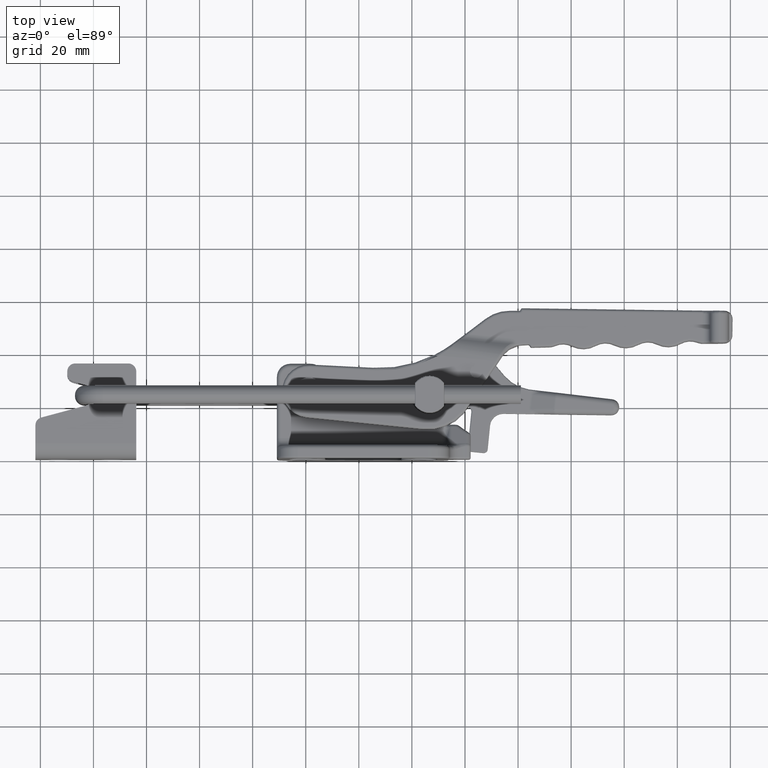
[diagram: clean part render]
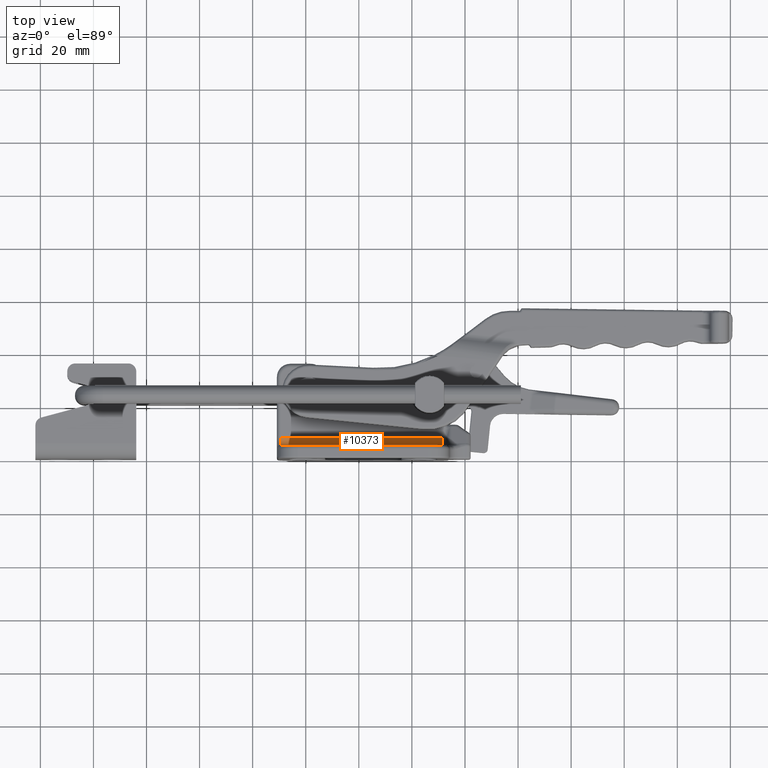
[diagram: same view with one face highlighted and labeled with its STEP entity id]
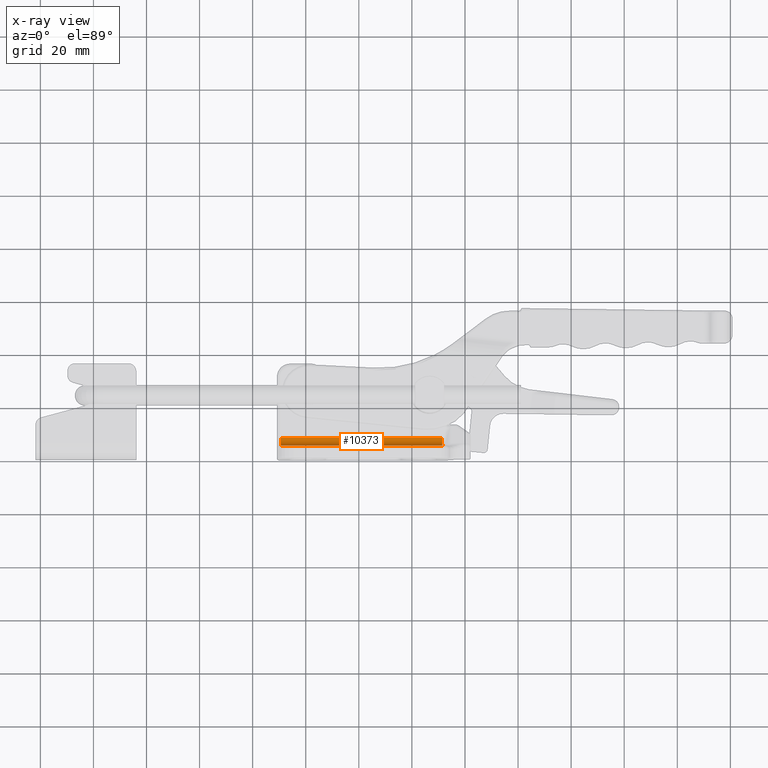
[diagram: x-ray of the same camera — body ghosted, the highlighted face saturated]
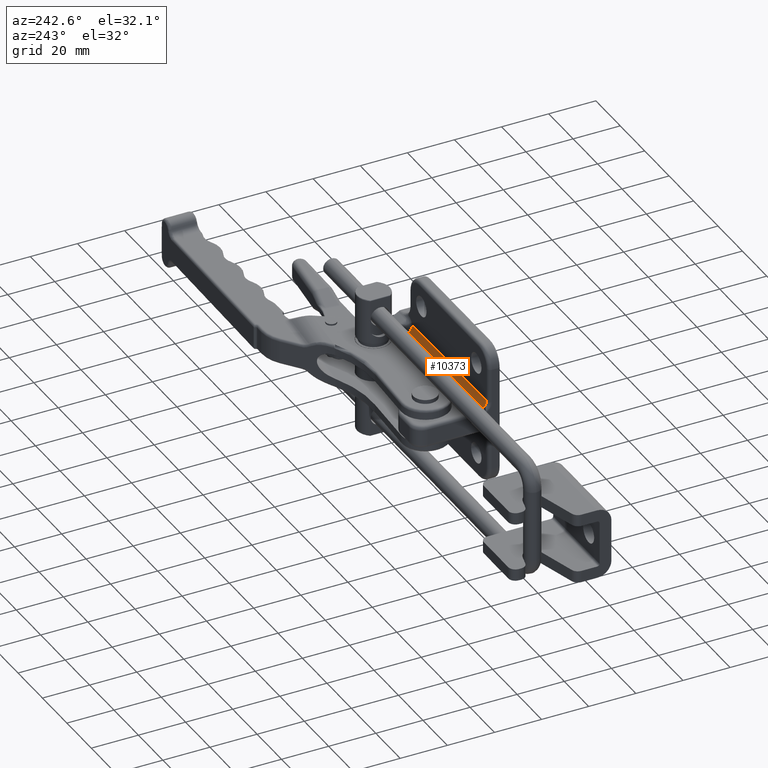
[diagram: same view with one face highlighted and labeled with its STEP entity id]
A machine part, top view. The second image highlights one B-rep face of the part: STEP entity #10373.
The next image is the same camera in x-ray: the body ghosted, the highlighted face saturated — about 0% of this face is hidden behind the body in this view.
A second angle (auxiliary view) of the same face is appended — the face is thin or edge-on in the first view.
In plain terms, the highlighted cylindrical surface (edge-blend (fillet) strip) has radius 3 mm, axis along (-1, 0, 0).
Its self-contained STEP definition (entity closure, byte-faithful):
#232=B_SPLINE_CURVE_WITH_KNOTS('',3,(#17398,#17399,#17400,#17401,#17402,
#17403,#17404,#17405,#17406,#17407),.UNSPECIFIED.,.F.,.F.,(4,1,1,1,1,1,
1,4),(0.,0.1428571428571,0.2857142857143,0.4285714285714,0.5714285714286,
0.7142857142857,0.8571428571429,1.),.UNSPECIFIED.);
#1074=FACE_OUTER_BOUND('',#1790,.T.);
#1790=EDGE_LOOP('',(#7507,#7508,#7509,#7510));
#2559=LINE('',#16953,#3089);
#2570=LINE('',#17397,#3100);
#3089=VECTOR('',#13097,60.752674837);
#3100=VECTOR('',#13188,60.9374040339998);
#3684=CIRCLE('',#11297,3.);
#4421=VERTEX_POINT('',#16925);
#4432=VERTEX_POINT('',#16951);
#4457=VERTEX_POINT('',#17392);
#4458=VERTEX_POINT('',#17396);
#5527=EDGE_CURVE('',#4421,#4432,#2559,.T.);
#5572=EDGE_CURVE('',#4457,#4432,#3684,.T.);
#5573=EDGE_CURVE('',#4457,#4458,#2570,.T.);
#5574=EDGE_CURVE('',#4421,#4458,#232,.T.);
#7507=ORIENTED_EDGE('',*,*,#5527,.T.);
#7508=ORIENTED_EDGE('',*,*,#5572,.F.);
#7509=ORIENTED_EDGE('',*,*,#5573,.T.);
#7510=ORIENTED_EDGE('',*,*,#5574,.F.);
#10001=CYLINDRICAL_SURFACE('',#11298,3.);
#10373=ADVANCED_FACE('',(#1074),#10001,.F.);
#11297=AXIS2_PLACEMENT_3D('',#17394,#13184,#13185);
#11298=AXIS2_PLACEMENT_3D('',#17395,#13186,#13187);
#13097=DIRECTION('',(-1.,4.710076902982E-12,-2.661461865622E-11));
#13184=DIRECTION('center_axis',(1.,0.,0.));
#13185=DIRECTION('ref_axis',(0.,-1.,0.));
#13186=DIRECTION('center_axis',(-1.,0.,0.));
#13187=DIRECTION('ref_axis',(0.,0.,1.));
#13188=DIRECTION('',(1.,2.768599513761E-12,-1.547032518689E-12));
#16925=CARTESIAN_POINT('',(1473.331346286,834.6022942939,4.75000000228864));
#16951=CARTESIAN_POINT('',(1412.578671449,834.6022942942,4.75));
#16953=CARTESIAN_POINT('',(1473.331346286,834.6022942939,4.750000001617));
#17392=CARTESIAN_POINT('',(1412.578671449,831.6022942942,7.75));
#17394=CARTESIAN_POINT('Origin',(1412.578671449,834.6022942942,7.75));
#17395=CARTESIAN_POINT('Origin',(1416.078671449,834.6022942942,7.75));
#17396=CARTESIAN_POINT('',(1473.516075483,831.6022942944,7.749999999906));
#17397=CARTESIAN_POINT('',(1412.578671449,831.6022942942,7.75));
#17398=CARTESIAN_POINT('Ctrl Pts',(1473.331346286,834.6022942939,4.750000001617));
#17399=CARTESIAN_POINT('Ctrl Pts',(1473.31861582,834.3884648355,4.750000001617));
#17400=CARTESIAN_POINT('Ctrl Pts',(1473.298927259,833.953169184,4.795614507341));
#17401=CARTESIAN_POINT('Ctrl Pts',(1473.286314,833.3050925572,5.015685528437));
#17402=CARTESIAN_POINT('Ctrl Pts',(1473.291812943,832.7141948792,5.384077827013));
#17403=CARTESIAN_POINT('Ctrl Pts',(1473.316209471,832.2212347742,5.881294227527));
#17404=CARTESIAN_POINT('Ctrl Pts',(1473.360817426,831.8596368477,6.471567316235));
#17405=CARTESIAN_POINT('Ctrl Pts',(1473.427157687,831.6458546165,7.113714235782));
#17406=CARTESIAN_POINT('Ctrl Pts',(1473.484206638,831.6022942944,7.540934947132));
#17407=CARTESIAN_POINT('Ctrl Pts',(1473.516075483,831.6022942944,7.749999999906));